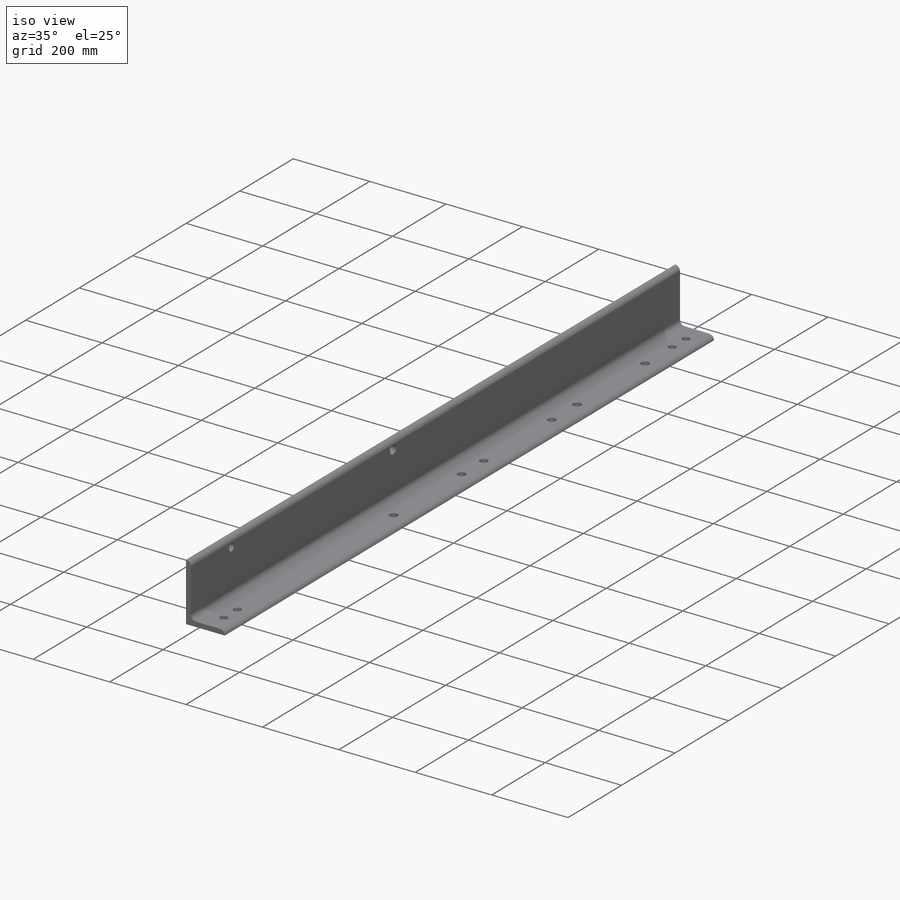
[diagram: iso view]
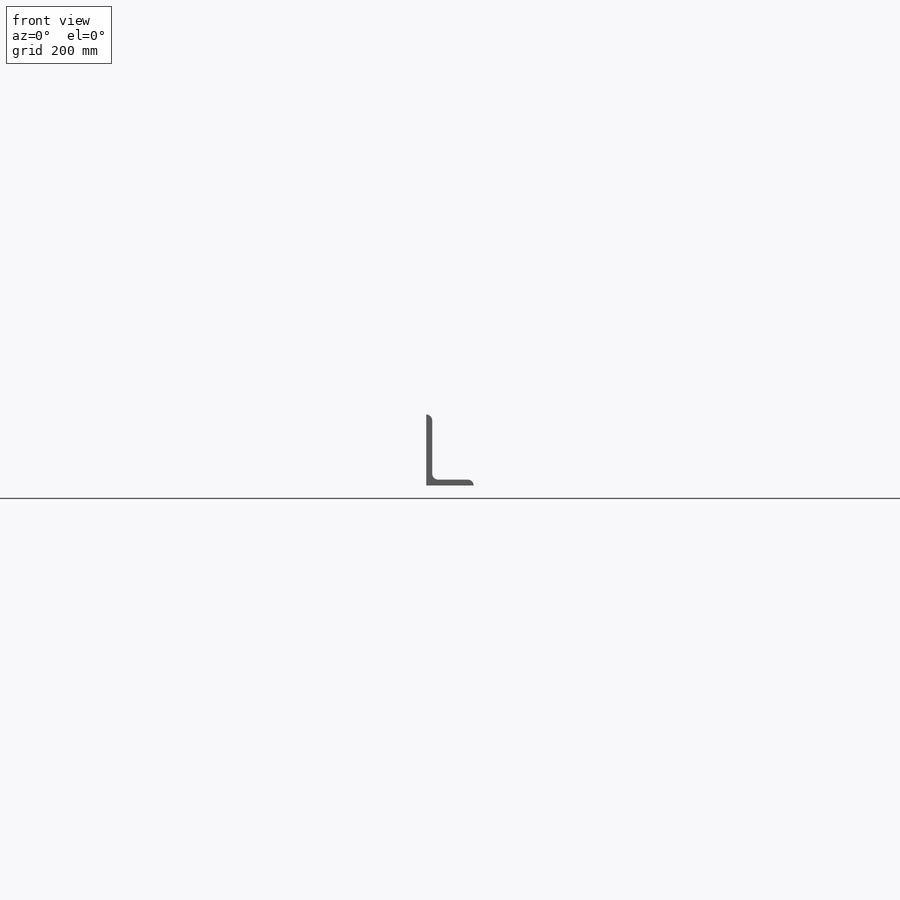
[diagram: front view]
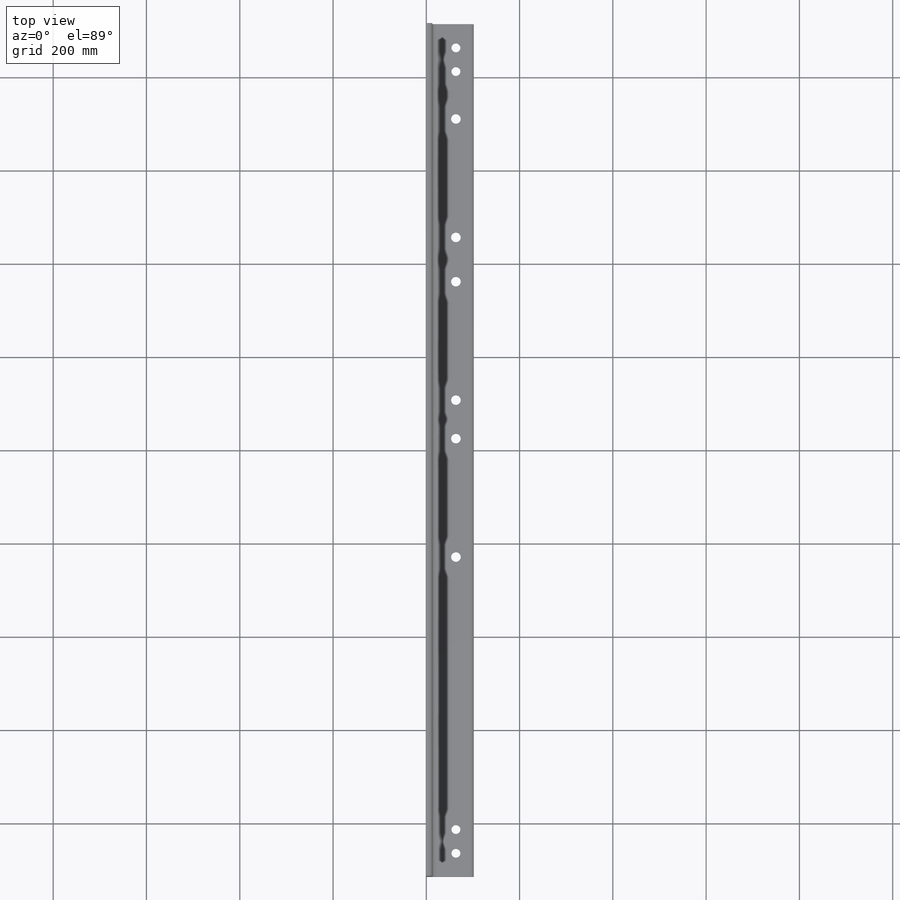
[diagram: top view]
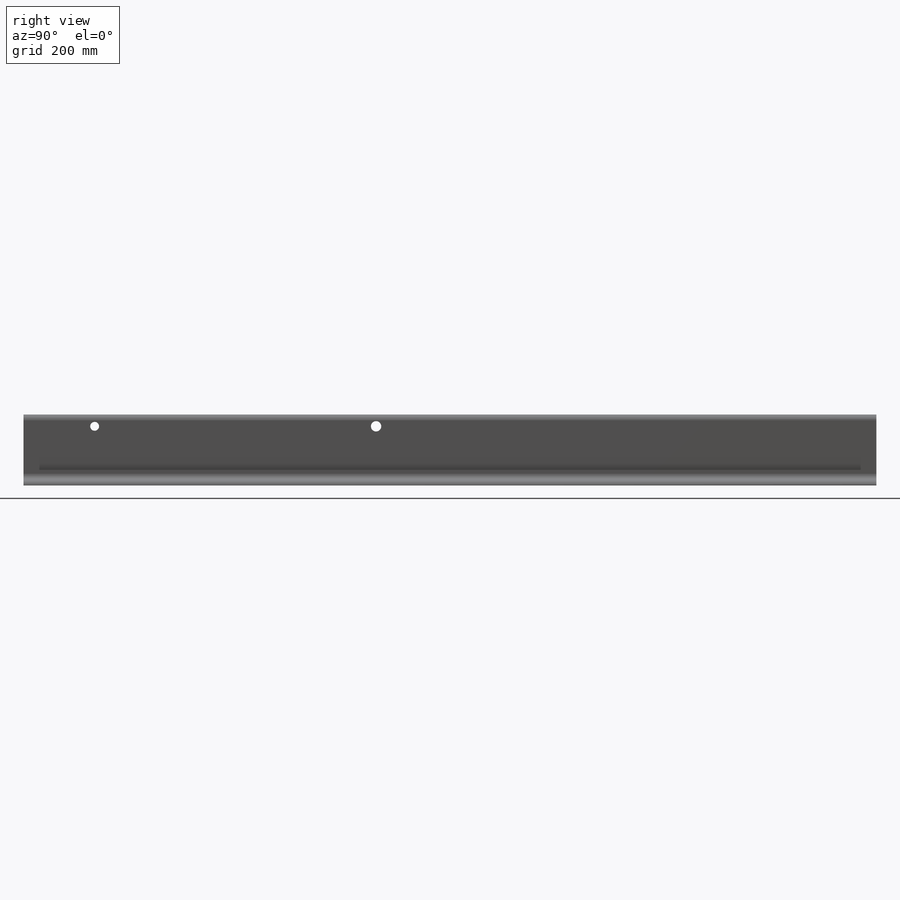
[diagram: right view]
SOLIDWORKS PART (.sldprt)
format: sldprt  version: not decoded by parser v0  size: 282,624 bytes
history: native  units: mm
features: sketch x5, cut_extrude x2, material x1, extrude x1, hole x1 (+11 scaffold rows collapsed)
feature tree (21):
  scaffold x11  (default folders/planes/origin — collapsed)
  material  "Material <not specified>"
  sketch  "Sketch1"  dims[c1.D2=3.175mm c1.Radius_1=12.7mm c1.Radius_2=12.7mm c1.V_leg=50.8mm c1.H_leg=50.8mm c1.Thickness=12.7mm c1.D1=12.7mm c1.D3=46.0375mm c2.V_leg=152.4mm c2.H_leg=101.6mm c2.Flat_wid=~0.00508mm c2.D3=6.35mm c2.D2=~0.00508mm c3.D3=12.7mm]
  extrude  "Boss-Extrude1"  Depth=1828.8mm
  sketch  "Sketch3"  dims[c1.D3=25.4mm c1.D4=25.4mm c1.D5=25.4mm c1.D6=25.4mm c1.D7=25.4mm c1.D9=20.6375mm c1.D10=~22.524285mm c1.D11=~16.775881mm c2.D4=20.6375mm c2.D5=20.6375mm c2.D8=19.05mm c2.D12=19.05mm c3.D4=20.6375mm c3.D1=38.1mm c3.D2=50.8mm c3.D3=50.8mm c4.D4=279.4mm c4.D5=215.9mm c5.D4=787.4mm c5.D5=152.4mm c5.D6=203.2mm c5.D7=254.0mm c5.D8=654.05mm c5.D10=254.0mm c5.D11=552.196mm c6.D4=69.85mm c6.D5=254.0mm c6.D8=50.8mm c6.D12=50.8mm c7.D4=888.746mm]
  cut_extrude  "Cut-Extrude2"  [1 undecoded]
  hole  "3/4 (0.75) Diameter Hole1"  Diameter=19.05mm Depth=12.7mm
  sketch  "Sketch5"  dims[D1=152.4mm D2=25.4mm]
  sketch  "Sketch4"  dims[hole-wizard template sketch: 60 standard entries collapsed; hole parameters kept: c18.Thru Hole Depth=12.7mm]
  sketch  "Sketch6"  dims[c1.D1=22.225mm c1.D2=22.225mm c1.D3=19.05mm c2.D1=755.904mm c2.D2=25.4mm]
  cut_extrude  "Cut-Extrude3"  [1 undecoded]
decode coverage: 7 of 9 modeling features carry decoded parameters
note: ~ marks probable driven/reference dimensions
note: 2 parameter values undecoded
note: suppression state not decoded; provenance and decode notes live in map.json
